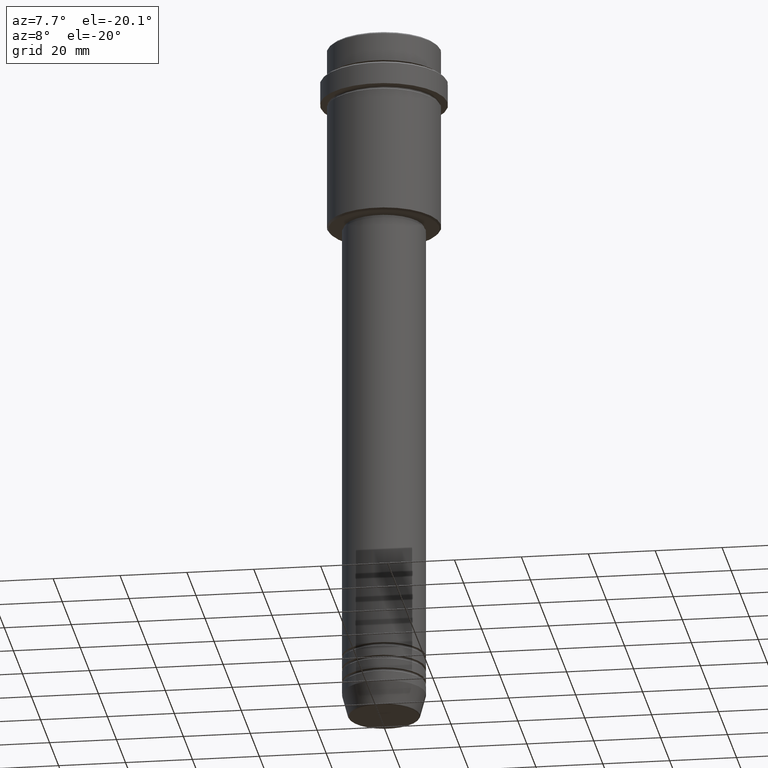
[diagram: clean part render]
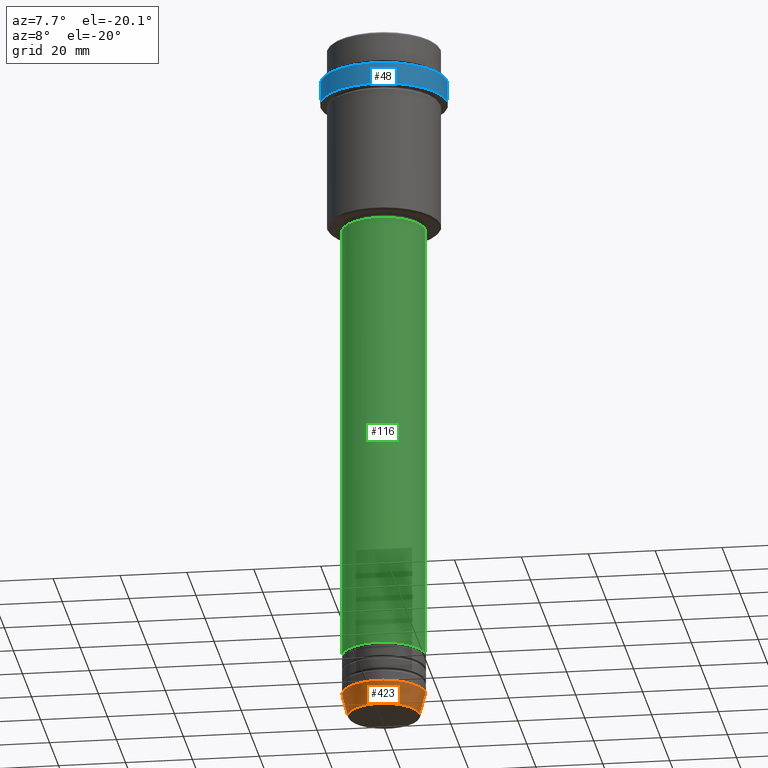
[diagram: same view with three faces highlighted in distinct colors, each labeled with its STEP entity id]
A machine part, auxiliary view with three faces highlighted in distinct colors.
Their STEP definitions:

[orange] entity #423 — the highlighted conical surface has half-angle 15 deg.
#108 = DIRECTION ( 'NONE',  ( 1.000000000000000000, 0.000000000000000000, 0.000000000000000000 ) ) ;
#110 = CARTESIAN_POINT ( 'NONE',  ( 12.50000000000000000, 0.000000000000000000, -203.0000000000000000 ) ) ;
#165 = AXIS2_PLACEMENT_3D ( 'NONE', #344, #562, #777 ) ;
#174 = ORIENTED_EDGE ( 'NONE', *, *, #532, .T. ) ;
#199 = ORIENTED_EDGE ( 'NONE', *, *, #1392, .T. ) ;
#221 = EDGE_CURVE ( 'NONE', #882, #1125, #545, .T. ) ;
#344 = CARTESIAN_POINT ( 'NONE',  ( 0.000000000000000000, 0.000000000000000000, -203.0000000000000000 ) ) ;
#378 = EDGE_CURVE ( 'NONE', #1268, #882, #1245, .T. ) ;
#383 = ORIENTED_EDGE ( 'NONE', *, *, #378, .F. ) ;
#390 = VECTOR ( 'NONE', #550, 1000.000000000000000 ) ;
#416 = EDGE_LOOP ( 'NONE', ( #383, #174, #199, #565 ) ) ;
#423 = ADVANCED_FACE ( 'NONE', ( #1227 ), #712, .T. ) ;
#502 = CIRCLE ( 'NONE', #1284, 10.72365507213718416 ) ;
#532 = EDGE_CURVE ( 'NONE', #1268, #1278, #502, .T. ) ;
#545 = CIRCLE ( 'NONE', #893, 12.50000000000000000 ) ;
#550 = DIRECTION ( 'NONE',  ( -0.2588190451025213501, 3.169619151431772337E-17, 0.9659258262890680902 ) ) ;
#562 = DIRECTION ( 'NONE',  ( -0.000000000000000000, -0.000000000000000000, 1.000000000000000000 ) ) ;
#565 = ORIENTED_EDGE ( 'NONE', *, *, #221, .F. ) ;
#633 = CARTESIAN_POINT ( 'NONE',  ( 0.000000000000000000, 0.000000000000000000, -203.0000000000000000 ) ) ;
#653 = DIRECTION ( 'NONE',  ( -0.000000000000000000, -0.000000000000000000, 1.000000000000000000 ) ) ;
#672 = CARTESIAN_POINT ( 'NONE',  ( 10.72365507213718416, 0.000000000000000000, -209.6294095225512990 ) ) ;
#712 = CONICAL_SURFACE ( 'NONE', #165, 12.50000000000000000, 0.2617993877991500740 ) ;
#777 = DIRECTION ( 'NONE',  ( 1.000000000000000000, 0.000000000000000000, 0.000000000000000000 ) ) ;
#782 = CARTESIAN_POINT ( 'NONE',  ( -12.50000000000000000, 1.530808498934191521E-15, -203.0000000000000000 ) ) ;
#787 = CARTESIAN_POINT ( 'NONE',  ( -12.50000000000000000, 1.530808498934191521E-15, -203.0000000000000000 ) ) ;
#807 = CARTESIAN_POINT ( 'NONE',  ( 0.000000000000000000, 0.000000000000000000, -209.6294095225512990 ) ) ;
#826 = DIRECTION ( 'NONE',  ( -0.000000000000000000, -0.000000000000000000, 1.000000000000000000 ) ) ;
#846 = VECTOR ( 'NONE', #880, 1000.000000000000000 ) ;
#880 = DIRECTION ( 'NONE',  ( 0.2588190451025213501, 0.000000000000000000, 0.9659258262890680902 ) ) ;
#882 = VERTEX_POINT ( 'NONE', #787 ) ;
#893 = AXIS2_PLACEMENT_3D ( 'NONE', #633, #653, #108 ) ;
#930 = DIRECTION ( 'NONE',  ( 1.000000000000000000, 0.000000000000000000, 0.000000000000000000 ) ) ;
#1010 = CARTESIAN_POINT ( 'NONE',  ( -10.72365507213718416, 1.422038742429750121E-15, -209.6294095225512990 ) ) ;
#1123 = CARTESIAN_POINT ( 'NONE',  ( 12.50000000000000000, 0.000000000000000000, -203.0000000000000000 ) ) ;
#1125 = VERTEX_POINT ( 'NONE', #110 ) ;
#1220 = LINE ( 'NONE', #1123, #846 ) ;
#1227 = FACE_OUTER_BOUND ( 'NONE', #416, .T. ) ;
#1245 = LINE ( 'NONE', #782, #390 ) ;
#1268 = VERTEX_POINT ( 'NONE', #1010 ) ;
#1278 = VERTEX_POINT ( 'NONE', #672 ) ;
#1284 = AXIS2_PLACEMENT_3D ( 'NONE', #807, #826, #930 ) ;
#1392 = EDGE_CURVE ( 'NONE', #1278, #1125, #1220, .T. ) ;

[blue] entity #48 — the highlighted cylindrical surface (partial cylindrical patch) has radius 19 mm, axis along (-0, -0, 1).
#9 = LINE ( 'NONE', #426, #1102 ) ;
#22 = DIRECTION ( 'NONE',  ( 1.000000000000000000, 0.000000000000000000, 0.000000000000000000 ) ) ;
#48 = ADVANCED_FACE ( 'NONE', ( #821 ), #168, .T. ) ;
#64 = DIRECTION ( 'NONE',  ( -0.000000000000000000, -0.000000000000000000, 1.000000000000000000 ) ) ;
#134 = EDGE_CURVE ( 'NONE', #376, #718, #159, .T. ) ;
#159 = LINE ( 'NONE', #594, #966 ) ;
#168 = CYLINDRICAL_SURFACE ( 'NONE', #1237, 18.99999999999997158 ) ;
#188 = CIRCLE ( 'NONE', #1193, 18.99999999999997158 ) ;
#200 = CARTESIAN_POINT ( 'NONE',  ( -18.99999999999997158, 2.326828918379967420E-15, -10.49999999999998934 ) ) ;
#264 = CARTESIAN_POINT ( 'NONE',  ( -18.99999999999997158, 2.326828918379967420E-15, -17.00000000000000000 ) ) ;
#290 = ORIENTED_EDGE ( 'NONE', *, *, #134, .T. ) ;
#376 = VERTEX_POINT ( 'NONE', #994 ) ;
#426 = CARTESIAN_POINT ( 'NONE',  ( -18.99999999999997158, 2.326828918379967420E-15, 0.000000000000000000 ) ) ;
#438 = EDGE_CURVE ( 'NONE', #718, #999, #188, .T. ) ;
#453 = CIRCLE ( 'NONE', #522, 18.99999999999997158 ) ;
#459 = ORIENTED_EDGE ( 'NONE', *, *, #438, .T. ) ;
#522 = AXIS2_PLACEMENT_3D ( 'NONE', #1049, #64, #667 ) ;
#594 = CARTESIAN_POINT ( 'NONE',  ( 18.99999999999997158, 0.000000000000000000, 0.000000000000000000 ) ) ;
#650 = ORIENTED_EDGE ( 'NONE', *, *, #1013, .F. ) ;
#667 = DIRECTION ( 'NONE',  ( 1.000000000000000000, 0.000000000000000000, 0.000000000000000000 ) ) ;
#718 = VERTEX_POINT ( 'NONE', #746 ) ;
#746 = CARTESIAN_POINT ( 'NONE',  ( 18.99999999999997158, 0.000000000000000000, -10.49999999999998934 ) ) ;
#821 = FACE_OUTER_BOUND ( 'NONE', #1206, .T. ) ;
#931 = DIRECTION ( 'NONE',  ( -0.000000000000000000, -0.000000000000000000, 1.000000000000000000 ) ) ;
#938 = ORIENTED_EDGE ( 'NONE', *, *, #1004, .T. ) ;
#966 = VECTOR ( 'NONE', #931, 1000.000000000000000 ) ;
#994 = CARTESIAN_POINT ( 'NONE',  ( 18.99999999999997158, 0.000000000000000000, -17.00000000000000000 ) ) ;
#999 = VERTEX_POINT ( 'NONE', #200 ) ;
#1004 = EDGE_CURVE ( 'NONE', #1342, #376, #453, .T. ) ;
#1008 = DIRECTION ( 'NONE',  ( 0.000000000000000000, 0.000000000000000000, -1.000000000000000000 ) ) ;
#1013 = EDGE_CURVE ( 'NONE', #1342, #999, #9, .T. ) ;
#1049 = CARTESIAN_POINT ( 'NONE',  ( 0.000000000000000000, 0.000000000000000000, -17.00000000000000000 ) ) ;
#1067 = DIRECTION ( 'NONE',  ( -0.000000000000000000, -0.000000000000000000, 1.000000000000000000 ) ) ;
#1102 = VECTOR ( 'NONE', #1216, 1000.000000000000000 ) ;
#1117 = CARTESIAN_POINT ( 'NONE',  ( 0.000000000000000000, 0.000000000000000000, -10.49999999999998934 ) ) ;
#1193 = AXIS2_PLACEMENT_3D ( 'NONE', #1117, #1008, #22 ) ;
#1206 = EDGE_LOOP ( 'NONE', ( #650, #938, #290, #459 ) ) ;
#1216 = DIRECTION ( 'NONE',  ( -0.000000000000000000, -0.000000000000000000, 1.000000000000000000 ) ) ;
#1237 = AXIS2_PLACEMENT_3D ( 'NONE', #1266, #1067, #1367 ) ;
#1266 = CARTESIAN_POINT ( 'NONE',  ( 0.000000000000000000, 0.000000000000000000, 0.000000000000000000 ) ) ;
#1342 = VERTEX_POINT ( 'NONE', #264 ) ;
#1367 = DIRECTION ( 'NONE',  ( 1.000000000000000000, 0.000000000000000000, 0.000000000000000000 ) ) ;

[green] entity #116 — the highlighted cylindrical surface (partial cylindrical patch) has radius 12.5 mm, axis along (-0, -0, 1).
#57 = FACE_OUTER_BOUND ( 'NONE', #1156, .T. ) ;
#103 = ORIENTED_EDGE ( 'NONE', *, *, #292, .F. ) ;
#107 = EDGE_CURVE ( 'NONE', #1311, #1118, #1277, .T. ) ;
#116 = ADVANCED_FACE ( 'NONE', ( #57 ), #181, .T. ) ;
#135 = VERTEX_POINT ( 'NONE', #762 ) ;
#154 = ORIENTED_EDGE ( 'NONE', *, *, #915, .T. ) ;
#181 = CYLINDRICAL_SURFACE ( 'NONE', #187, 12.50000000000000000 ) ;
#187 = AXIS2_PLACEMENT_3D ( 'NONE', #951, #1384, #295 ) ;
#208 = CIRCLE ( 'NONE', #1280, 12.50000000000000000 ) ;
#292 = EDGE_CURVE ( 'NONE', #1118, #135, #570, .T. ) ;
#295 = DIRECTION ( 'NONE',  ( 1.000000000000000000, 0.000000000000000000, 0.000000000000000000 ) ) ;
#309 = CARTESIAN_POINT ( 'NONE',  ( 0.000000000000000000, 0.000000000000000000, -190.9999999999999147 ) ) ;
#388 = VERTEX_POINT ( 'NONE', #881 ) ;
#495 = DIRECTION ( 'NONE',  ( 1.000000000000000000, 0.000000000000000000, 0.000000000000000000 ) ) ;
#570 = CIRCLE ( 'NONE', #1376, 12.50000000000000000 ) ;
#577 = DIRECTION ( 'NONE',  ( -0.000000000000000000, -0.000000000000000000, 1.000000000000000000 ) ) ;
#629 = DIRECTION ( 'NONE',  ( -0.000000000000000000, -0.000000000000000000, 1.000000000000000000 ) ) ;
#721 = CARTESIAN_POINT ( 'NONE',  ( -12.50000000000000000, 1.530808498934191521E-15, 0.000000000000000000 ) ) ;
#744 = CARTESIAN_POINT ( 'NONE',  ( -12.50000000000000000, 1.530808498934191521E-15, -56.99999999999999289 ) ) ;
#762 = CARTESIAN_POINT ( 'NONE',  ( 12.50000000000000000, 0.000000000000000000, -56.99999999999999289 ) ) ;
#772 = VECTOR ( 'NONE', #1165, 1000.000000000000000 ) ;
#780 = ORIENTED_EDGE ( 'NONE', *, *, #1403, .T. ) ;
#828 = CARTESIAN_POINT ( 'NONE',  ( -12.50000000000000000, 1.530808498934191521E-15, -190.9999999999999147 ) ) ;
#881 = CARTESIAN_POINT ( 'NONE',  ( 12.50000000000000000, 0.000000000000000000, -190.9999999999999147 ) ) ;
#887 = LINE ( 'NONE', #1324, #1331 ) ;
#915 = EDGE_CURVE ( 'NONE', #1311, #388, #208, .T. ) ;
#951 = CARTESIAN_POINT ( 'NONE',  ( 0.000000000000000000, 0.000000000000000000, 0.000000000000000000 ) ) ;
#1005 = ORIENTED_EDGE ( 'NONE', *, *, #107, .F. ) ;
#1087 = DIRECTION ( 'NONE',  ( -0.000000000000000000, -0.000000000000000000, 1.000000000000000000 ) ) ;
#1118 = VERTEX_POINT ( 'NONE', #744 ) ;
#1156 = EDGE_LOOP ( 'NONE', ( #1005, #154, #780, #103 ) ) ;
#1165 = DIRECTION ( 'NONE',  ( -0.000000000000000000, -0.000000000000000000, 1.000000000000000000 ) ) ;
#1183 = CARTESIAN_POINT ( 'NONE',  ( 0.000000000000000000, 0.000000000000000000, -56.99999999999999289 ) ) ;
#1277 = LINE ( 'NONE', #721, #772 ) ;
#1280 = AXIS2_PLACEMENT_3D ( 'NONE', #309, #629, #495 ) ;
#1311 = VERTEX_POINT ( 'NONE', #828 ) ;
#1313 = DIRECTION ( 'NONE',  ( 1.000000000000000000, 0.000000000000000000, 0.000000000000000000 ) ) ;
#1324 = CARTESIAN_POINT ( 'NONE',  ( 12.50000000000000000, 0.000000000000000000, 0.000000000000000000 ) ) ;
#1331 = VECTOR ( 'NONE', #577, 1000.000000000000000 ) ;
#1376 = AXIS2_PLACEMENT_3D ( 'NONE', #1183, #1087, #1313 ) ;
#1384 = DIRECTION ( 'NONE',  ( -0.000000000000000000, -0.000000000000000000, 1.000000000000000000 ) ) ;
#1403 = EDGE_CURVE ( 'NONE', #388, #135, #887, .T. ) ;